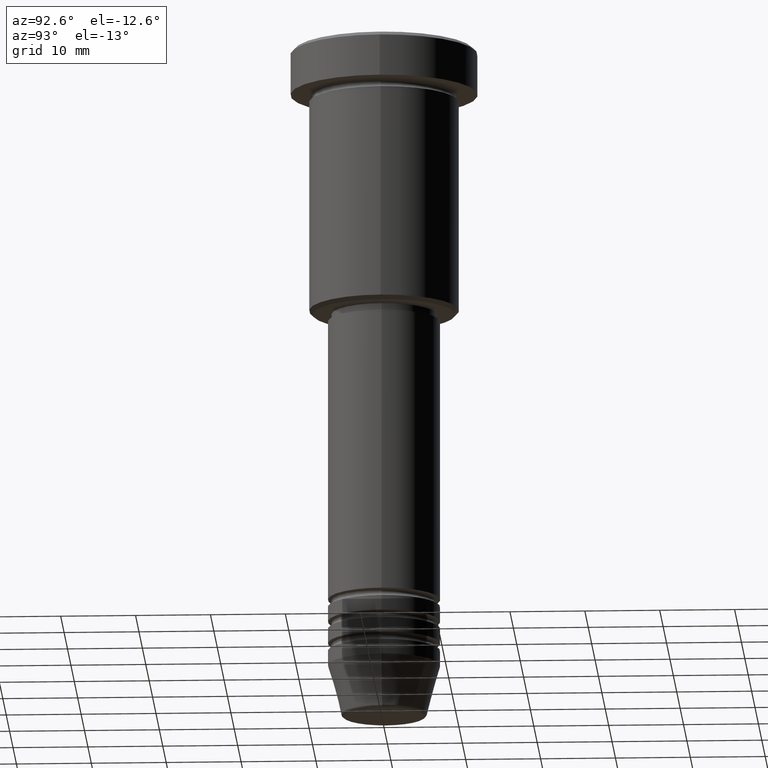
[diagram: clean part render]
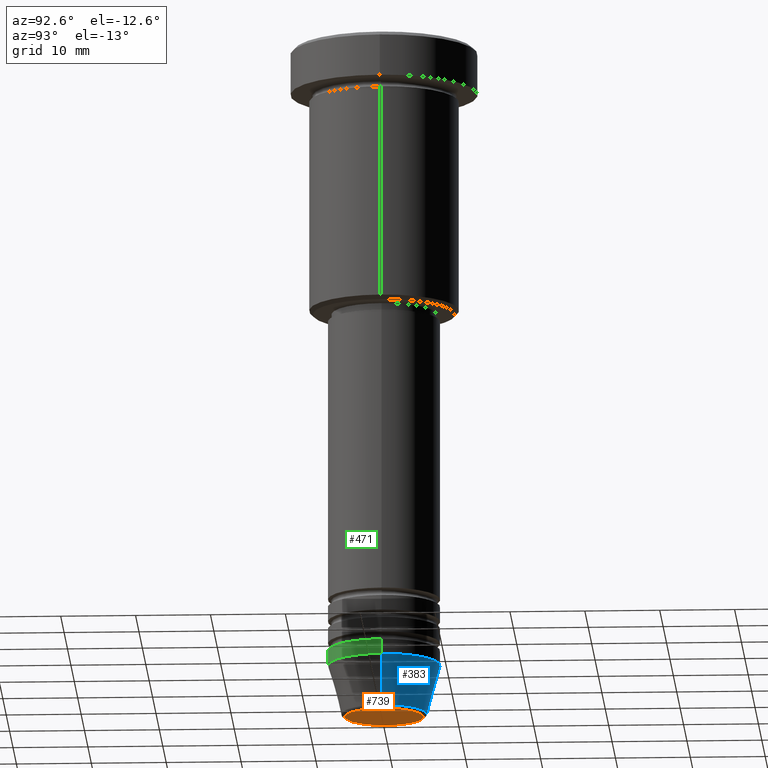
[diagram: same view with three faces highlighted in distinct colors, each labeled with its STEP entity id]
A machine part, auxiliary view with three faces highlighted in distinct colors.
Their STEP definitions:

[orange] entity #739 — the highlighted planar face has unit normal (0, -0, 1).
#152 = EDGE_CURVE ( 'NONE', #358, #898, #736, .T. ) ;
#164 = CARTESIAN_POINT ( 'NONE',  ( 0.000000000000000000, 0.000000000000000000, -91.00000000000000000 ) ) ;
#174 = AXIS2_PLACEMENT_3D ( 'NONE', #206, #757, #737 ) ;
#206 = CARTESIAN_POINT ( 'NONE',  ( 0.000000000000000000, 0.000000000000000000, -91.00000000000000000 ) ) ;
#249 = CIRCLE ( 'NONE', #174, 5.240692158992654726 ) ;
#358 = VERTEX_POINT ( 'NONE', #418 ) ;
#374 = CARTESIAN_POINT ( 'NONE',  ( 0.000000000000000000, 0.000000000000000000, -91.00000000000000000 ) ) ;
#418 = CARTESIAN_POINT ( 'NONE',  ( -5.240692158992654726, 6.713726370671654515E-16, -91.00000000000000000 ) ) ;
#459 = AXIS2_PLACEMENT_3D ( 'NONE', #164, #973, #527 ) ;
#521 = FACE_OUTER_BOUND ( 'NONE', #918, .T. ) ;
#527 = DIRECTION ( 'NONE',  ( 1.000000000000000000, 0.000000000000000000, 0.000000000000000000 ) ) ;
#543 = DIRECTION ( 'NONE',  ( 1.000000000000000000, 0.000000000000000000, 0.000000000000000000 ) ) ;
#630 = ORIENTED_EDGE ( 'NONE', *, *, #928, .T. ) ;
#736 = CIRCLE ( 'NONE', #988, 5.240692158992654726 ) ;
#737 = DIRECTION ( 'NONE',  ( 1.000000000000000000, 0.000000000000000000, 0.000000000000000000 ) ) ;
#739 = ADVANCED_FACE ( 'NONE', ( #521 ), #1067, .F. ) ;
#757 = DIRECTION ( 'NONE',  ( 0.000000000000000000, 0.000000000000000000, -1.000000000000000000 ) ) ;
#898 = VERTEX_POINT ( 'NONE', #1115 ) ;
#918 = EDGE_LOOP ( 'NONE', ( #630, #1010 ) ) ;
#928 = EDGE_CURVE ( 'NONE', #898, #358, #249, .T. ) ;
#973 = DIRECTION ( 'NONE',  ( 0.000000000000000000, -0.000000000000000000, 1.000000000000000000 ) ) ;
#988 = AXIS2_PLACEMENT_3D ( 'NONE', #374, #1179, #543 ) ;
#1010 = ORIENTED_EDGE ( 'NONE', *, *, #152, .T. ) ;
#1067 = PLANE ( 'NONE',  #459 ) ;
#1115 = CARTESIAN_POINT ( 'NONE',  ( 5.240692158992654726, 0.000000000000000000, -91.00000000000000000 ) ) ;
#1179 = DIRECTION ( 'NONE',  ( 0.000000000000000000, 0.000000000000000000, -1.000000000000000000 ) ) ;

[blue] entity #383 — the highlighted conical surface has half-angle 15 deg.
#7 = ORIENTED_EDGE ( 'NONE', *, *, #778, .T. ) ;
#55 = DIRECTION ( 'NONE',  ( -0.000000000000000000, -0.000000000000000000, 1.000000000000000000 ) ) ;
#89 = AXIS2_PLACEMENT_3D ( 'NONE', #349, #55, #619 ) ;
#121 = DIRECTION ( 'NONE',  ( 0.2588190451025213501, 0.000000000000000000, 0.9659258262890680902 ) ) ;
#154 = FACE_OUTER_BOUND ( 'NONE', #770, .T. ) ;
#195 = LINE ( 'NONE', #301, #348 ) ;
#259 = CARTESIAN_POINT ( 'NONE',  ( -7.500000000000000000, 9.184850993605147944E-16, -83.99999999999998579 ) ) ;
#273 = CARTESIAN_POINT ( 'NONE',  ( -5.723655072137190380, 8.097153428560735915E-16, -90.62940952255125637 ) ) ;
#301 = CARTESIAN_POINT ( 'NONE',  ( 7.500000000000000000, 0.000000000000000000, -83.99999999999998579 ) ) ;
#316 = DIRECTION ( 'NONE',  ( 1.000000000000000000, 0.000000000000000000, 0.000000000000000000 ) ) ;
#327 = CONICAL_SURFACE ( 'NONE', #89, 7.500000000000000000, 0.2617993877991500740 ) ;
#335 = LINE ( 'NONE', #689, #974 ) ;
#348 = VECTOR ( 'NONE', #121, 1000.000000000000000 ) ;
#349 = CARTESIAN_POINT ( 'NONE',  ( 0.000000000000000000, 0.000000000000000000, -83.99999999999998579 ) ) ;
#383 = ADVANCED_FACE ( 'NONE', ( #154 ), #327, .T. ) ;
#480 = CARTESIAN_POINT ( 'NONE',  ( 0.000000000000000000, 0.000000000000000000, -83.99999999999998579 ) ) ;
#497 = AXIS2_PLACEMENT_3D ( 'NONE', #685, #858, #774 ) ;
#547 = ORIENTED_EDGE ( 'NONE', *, *, #802, .T. ) ;
#580 = CARTESIAN_POINT ( 'NONE',  ( 5.723655072137191269, 0.000000000000000000, -90.62940952255125637 ) ) ;
#619 = DIRECTION ( 'NONE',  ( 1.000000000000000000, 0.000000000000000000, 0.000000000000000000 ) ) ;
#631 = VERTEX_POINT ( 'NONE', #273 ) ;
#673 = DIRECTION ( 'NONE',  ( -0.000000000000000000, -0.000000000000000000, 1.000000000000000000 ) ) ;
#685 = CARTESIAN_POINT ( 'NONE',  ( 0.000000000000000000, 0.000000000000000000, -90.62940952255125637 ) ) ;
#689 = CARTESIAN_POINT ( 'NONE',  ( -7.500000000000000000, 9.184850993605147944E-16, -83.99999999999998579 ) ) ;
#702 = CIRCLE ( 'NONE', #497, 5.723655072137191269 ) ;
#714 = ORIENTED_EDGE ( 'NONE', *, *, #949, .F. ) ;
#770 = EDGE_LOOP ( 'NONE', ( #7, #547, #1027, #714 ) ) ;
#774 = DIRECTION ( 'NONE',  ( 1.000000000000000000, 0.000000000000000000, 0.000000000000000000 ) ) ;
#778 = EDGE_CURVE ( 'NONE', #809, #631, #702, .T. ) ;
#802 = EDGE_CURVE ( 'NONE', #631, #847, #335, .T. ) ;
#809 = VERTEX_POINT ( 'NONE', #580 ) ;
#847 = VERTEX_POINT ( 'NONE', #259 ) ;
#858 = DIRECTION ( 'NONE',  ( -0.000000000000000000, -0.000000000000000000, 1.000000000000000000 ) ) ;
#883 = DIRECTION ( 'NONE',  ( -0.2588190451025213501, 3.169619151431772337E-17, 0.9659258262890680902 ) ) ;
#949 = EDGE_CURVE ( 'NONE', #809, #1086, #195, .T. ) ;
#974 = VECTOR ( 'NONE', #883, 1000.000000000000000 ) ;
#1027 = ORIENTED_EDGE ( 'NONE', *, *, #1171, .F. ) ;
#1051 = CIRCLE ( 'NONE', #1144, 7.500000000000000000 ) ;
#1086 = VERTEX_POINT ( 'NONE', #1111 ) ;
#1111 = CARTESIAN_POINT ( 'NONE',  ( 7.500000000000000000, 0.000000000000000000, -83.99999999999998579 ) ) ;
#1144 = AXIS2_PLACEMENT_3D ( 'NONE', #480, #673, #316 ) ;
#1171 = EDGE_CURVE ( 'NONE', #1086, #847, #1051, .T. ) ;

[green] entity #471 — the highlighted cylindrical surface (partial cylindrical patch) has radius 7.5 mm, axis along (-0, -0, 1).
#1 = CARTESIAN_POINT ( 'NONE',  ( -7.500000000000000000, 9.184850993605147944E-16, 0.000000000000000000 ) ) ;
#45 = LINE ( 'NONE', #979, #661 ) ;
#173 = AXIS2_PLACEMENT_3D ( 'NONE', #253, #1056, #508 ) ;
#219 = CARTESIAN_POINT ( 'NONE',  ( -7.500000000000000000, 9.184850993605147944E-16, -81.99999999999998579 ) ) ;
#253 = CARTESIAN_POINT ( 'NONE',  ( 0.000000000000000000, 0.000000000000000000, 0.000000000000000000 ) ) ;
#259 = CARTESIAN_POINT ( 'NONE',  ( -7.500000000000000000, 9.184850993605147944E-16, -83.99999999999998579 ) ) ;
#260 = DIRECTION ( 'NONE',  ( -0.000000000000000000, -0.000000000000000000, 1.000000000000000000 ) ) ;
#300 = ORIENTED_EDGE ( 'NONE', *, *, #413, .T. ) ;
#336 = DIRECTION ( 'NONE',  ( -0.000000000000000000, -0.000000000000000000, 1.000000000000000000 ) ) ;
#337 = CARTESIAN_POINT ( 'NONE',  ( 0.000000000000000000, 0.000000000000000000, -83.99999999999998579 ) ) ;
#357 = LINE ( 'NONE', #1, #881 ) ;
#413 = EDGE_CURVE ( 'NONE', #847, #1086, #1141, .T. ) ;
#455 = CARTESIAN_POINT ( 'NONE',  ( 0.000000000000000000, 0.000000000000000000, -81.99999999999998579 ) ) ;
#471 = ADVANCED_FACE ( 'NONE', ( #705 ), #1055, .T. ) ;
#492 = ORIENTED_EDGE ( 'NONE', *, *, #614, .F. ) ;
#495 = AXIS2_PLACEMENT_3D ( 'NONE', #337, #612, #980 ) ;
#508 = DIRECTION ( 'NONE',  ( 1.000000000000000000, 0.000000000000000000, 0.000000000000000000 ) ) ;
#536 = DIRECTION ( 'NONE',  ( 1.000000000000000000, 0.000000000000000000, 0.000000000000000000 ) ) ;
#539 = EDGE_CURVE ( 'NONE', #1086, #577, #45, .T. ) ;
#542 = ORIENTED_EDGE ( 'NONE', *, *, #539, .T. ) ;
#553 = DIRECTION ( 'NONE',  ( -0.000000000000000000, -0.000000000000000000, 1.000000000000000000 ) ) ;
#568 = AXIS2_PLACEMENT_3D ( 'NONE', #455, #553, #536 ) ;
#577 = VERTEX_POINT ( 'NONE', #634 ) ;
#578 = EDGE_CURVE ( 'NONE', #991, #577, #591, .T. ) ;
#591 = CIRCLE ( 'NONE', #568, 7.500000000000000000 ) ;
#612 = DIRECTION ( 'NONE',  ( -0.000000000000000000, -0.000000000000000000, 1.000000000000000000 ) ) ;
#614 = EDGE_CURVE ( 'NONE', #847, #991, #357, .T. ) ;
#634 = CARTESIAN_POINT ( 'NONE',  ( 7.500000000000000000, 0.000000000000000000, -81.99999999999998579 ) ) ;
#661 = VECTOR ( 'NONE', #336, 1000.000000000000000 ) ;
#705 = FACE_OUTER_BOUND ( 'NONE', #804, .T. ) ;
#804 = EDGE_LOOP ( 'NONE', ( #492, #300, #542, #1169 ) ) ;
#847 = VERTEX_POINT ( 'NONE', #259 ) ;
#881 = VECTOR ( 'NONE', #260, 1000.000000000000000 ) ;
#979 = CARTESIAN_POINT ( 'NONE',  ( 7.500000000000000000, 0.000000000000000000, 0.000000000000000000 ) ) ;
#980 = DIRECTION ( 'NONE',  ( 1.000000000000000000, 0.000000000000000000, 0.000000000000000000 ) ) ;
#991 = VERTEX_POINT ( 'NONE', #219 ) ;
#1055 = CYLINDRICAL_SURFACE ( 'NONE', #173, 7.500000000000000000 ) ;
#1056 = DIRECTION ( 'NONE',  ( -0.000000000000000000, -0.000000000000000000, 1.000000000000000000 ) ) ;
#1086 = VERTEX_POINT ( 'NONE', #1111 ) ;
#1111 = CARTESIAN_POINT ( 'NONE',  ( 7.500000000000000000, 0.000000000000000000, -83.99999999999998579 ) ) ;
#1141 = CIRCLE ( 'NONE', #495, 7.500000000000000000 ) ;
#1169 = ORIENTED_EDGE ( 'NONE', *, *, #578, .F. ) ;